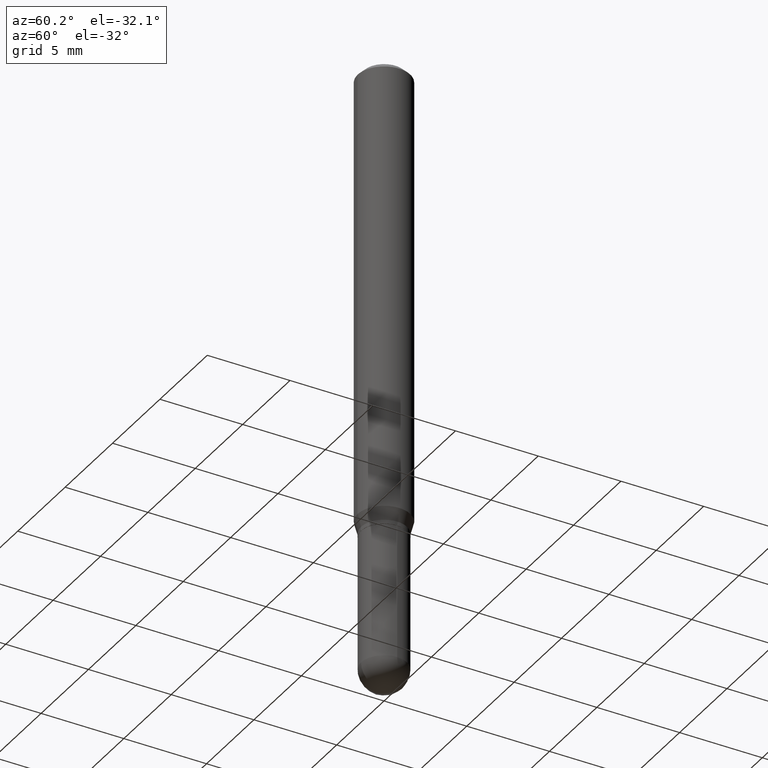
[diagram: clean part render]
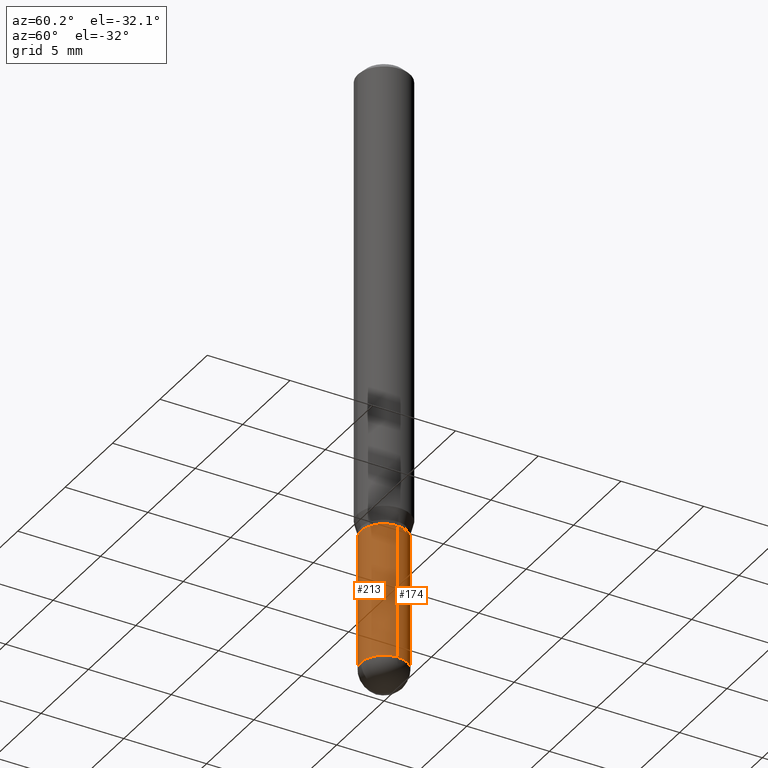
[diagram: same view with one multi-face feature highlighted, each face labeled with its STEP entity id]
A machine part, auxiliary view. The highlighted faces form ONE feature: a constant-radius fillet chain: 2 tangent blend faces with common blend radius 1.3894 mm. The faces share edges in the B-rep.
Their STEP definitions:
[1] entity #213 (Cylinder):
#7 = AXIS2_PLACEMENT_3D ( 'NONE', #219, #334, #107 ) ;
#42 = EDGE_CURVE ( 'NONE', #391, #53, #316, .T. ) ;
#53 = VERTEX_POINT ( 'NONE', #145 ) ;
#55 = CARTESIAN_POINT ( 'NONE',  ( -0.05469999999999999862, 3.886668764607747919E-16, -2.690657494369433708E-30 ) ) ;
#88 = DIRECTION ( 'NONE',  ( -2.445468806185136877E-29, 3.491481338843145188E-15, 1.000000000000000000 ) ) ;
#96 = AXIS2_PLACEMENT_3D ( 'NONE', #377, #339, #386 ) ;
#101 = CARTESIAN_POINT ( 'NONE',  ( 0.05470000000000000556, -4.869045301083706902E-15, -1.445300000000000029 ) ) ;
#102 = ORIENTED_EDGE ( 'NONE', *, *, #148, .T. ) ;
#106 = CARTESIAN_POINT ( 'NONE',  ( 0.05469999999999999862, -3.819680584694387859E-16, 2.667268696360376954E-30 ) ) ;
#107 = DIRECTION ( 'NONE',  ( 1.000000000000000000, -6.982962677686259611E-15, 0.000000000000000000 ) ) ;
#123 = DIRECTION ( 'NONE',  ( -2.445468806185136597E-29, 3.491481338843145583E-15, 1.000000000000000000 ) ) ;
#145 = CARTESIAN_POINT ( 'NONE',  ( 0.05469999999999999862, -4.309884564667978405E-15, -1.125000000000000222 ) ) ;
#148 = EDGE_CURVE ( 'NONE', #317, #278, #372, .T. ) ;
#158 = CYLINDRICAL_SURFACE ( 'NONE', #396, 0.05469999999999999862 ) ;
#161 = EDGE_LOOP ( 'NONE', ( #504, #102, #343, #427, #239 ) ) ;
#165 = DIRECTION ( 'NONE',  ( 1.000000000000000000, -6.982962677686269866E-15, 0.000000000000000000 ) ) ;
#169 = CIRCLE ( 'NONE', #7, 0.05470000000000000556 ) ;
#180 = CARTESIAN_POINT ( 'NONE',  ( -3.819680584694040760E-16, -0.05470000000000515422, -1.445299999999999807 ) ) ;
#207 = EDGE_CURVE ( 'NONE', #346, #53, #212, .T. ) ;
#208 = CARTESIAN_POINT ( 'NONE',  ( -0.05469999999999999862, -4.098410366153493916E-15, -1.125000000000000222 ) ) ;
#212 = CIRCLE ( 'NONE', #498, 0.05469999999999999862 ) ;
#213 = ADVANCED_FACE ( 'NONE', ( #468 ), #158, .T. ) ;
#219 = CARTESIAN_POINT ( 'NONE',  ( 3.534436065579377749E-29, -5.046237979029997798E-15, -1.445300000000000029 ) ) ;
#235 = VECTOR ( 'NONE', #420, 39.37007874015748143 ) ;
#239 = ORIENTED_EDGE ( 'NONE', *, *, #207, .F. ) ;
#248 = EDGE_CURVE ( 'NONE', #278, #391, #169, .T. ) ;
#252 = LINE ( 'NONE', #55, #464 ) ;
#278 = VERTEX_POINT ( 'NONE', #180 ) ;
#284 = DIRECTION ( 'NONE',  ( 1.000000000000000000, -6.982962677686266711E-15, 4.876176775795935793E-29 ) ) ;
#290 = DIRECTION ( 'NONE',  ( -2.445468806185136597E-29, 3.491481338843145583E-15, 1.000000000000000000 ) ) ;
#292 = CARTESIAN_POINT ( 'NONE',  ( -0.05470000000000000556, -4.098410366153493916E-15, -1.445300000000000029 ) ) ;
#316 = LINE ( 'NONE', #106, #235 ) ;
#317 = VERTEX_POINT ( 'NONE', #292 ) ;
#320 = CARTESIAN_POINT ( 'NONE',  ( 0.000000000000000000, 0.000000000000000000, 0.000000000000000000 ) ) ;
#324 = CARTESIAN_POINT ( 'NONE',  ( 2.751152406958279232E-29, -3.927916506198539224E-15, -1.125000000000000222 ) ) ;
#334 = DIRECTION ( 'NONE',  ( -2.445468806185136597E-29, 3.491481338843145583E-15, 1.000000000000000000 ) ) ;
#339 = DIRECTION ( 'NONE',  ( -2.445468806185136597E-29, 3.491481338843145583E-15, 1.000000000000000000 ) ) ;
#343 = ORIENTED_EDGE ( 'NONE', *, *, #248, .T. ) ;
#346 = VERTEX_POINT ( 'NONE', #208 ) ;
#372 = CIRCLE ( 'NONE', #96, 0.05470000000000000556 ) ;
#377 = CARTESIAN_POINT ( 'NONE',  ( 3.534436065579377749E-29, -5.046237979029997798E-15, -1.445300000000000029 ) ) ;
#386 = DIRECTION ( 'NONE',  ( 1.000000000000000000, -6.982962677686259611E-15, 0.000000000000000000 ) ) ;
#391 = VERTEX_POINT ( 'NONE', #101 ) ;
#396 = AXIS2_PLACEMENT_3D ( 'NONE', #320, #123, #284 ) ;
#420 = DIRECTION ( 'NONE',  ( -2.445468806185136877E-29, 3.491481338843145188E-15, 1.000000000000000000 ) ) ;
#427 = ORIENTED_EDGE ( 'NONE', *, *, #42, .T. ) ;
#457 = EDGE_CURVE ( 'NONE', #317, #346, #252, .T. ) ;
#464 = VECTOR ( 'NONE', #88, 39.37007874015748143 ) ;
#468 = FACE_OUTER_BOUND ( 'NONE', #161, .T. ) ;
#498 = AXIS2_PLACEMENT_3D ( 'NONE', #324, #290, #165 ) ;
#504 = ORIENTED_EDGE ( 'NONE', *, *, #457, .F. ) ;
[2] entity #174 (Cylinder):
#12 = DIRECTION ( 'NONE',  ( 1.000000000000000000, -6.982962677686269866E-15, 0.000000000000000000 ) ) ;
#42 = EDGE_CURVE ( 'NONE', #391, #53, #316, .T. ) ;
#45 = AXIS2_PLACEMENT_3D ( 'NONE', #286, #93, #257 ) ;
#46 = DIRECTION ( 'NONE',  ( 1.000000000000000000, -6.982962677686259611E-15, 0.000000000000000000 ) ) ;
#53 = VERTEX_POINT ( 'NONE', #145 ) ;
#55 = CARTESIAN_POINT ( 'NONE',  ( -0.05469999999999999862, 3.886668764607747919E-16, -2.690657494369433708E-30 ) ) ;
#81 = FACE_OUTER_BOUND ( 'NONE', #507, .T. ) ;
#83 = ORIENTED_EDGE ( 'NONE', *, *, #388, .T. ) ;
#88 = DIRECTION ( 'NONE',  ( -2.445468806185136877E-29, 3.491481338843145188E-15, 1.000000000000000000 ) ) ;
#91 = ORIENTED_EDGE ( 'NONE', *, *, #216, .T. ) ;
#93 = DIRECTION ( 'NONE',  ( -2.445468806185136597E-29, 3.491481338843145583E-15, 1.000000000000000000 ) ) ;
#98 = CARTESIAN_POINT ( 'NONE',  ( 3.886668764608108330E-16, 0.05469999999999505119, -1.445300000000000251 ) ) ;
#101 = CARTESIAN_POINT ( 'NONE',  ( 0.05470000000000000556, -4.869045301083706902E-15, -1.445300000000000029 ) ) ;
#106 = CARTESIAN_POINT ( 'NONE',  ( 0.05469999999999999862, -3.819680584694387859E-16, 2.667268696360376954E-30 ) ) ;
#127 = DIRECTION ( 'NONE',  ( 1.000000000000000000, -6.982962677686266711E-15, 4.876176775795935793E-29 ) ) ;
#132 = CIRCLE ( 'NONE', #266, 0.05470000000000000556 ) ;
#139 = CARTESIAN_POINT ( 'NONE',  ( 2.751152406958279232E-29, -3.927916506198539224E-15, -1.125000000000000222 ) ) ;
#145 = CARTESIAN_POINT ( 'NONE',  ( 0.05469999999999999862, -4.309884564667978405E-15, -1.125000000000000222 ) ) ;
#170 = CARTESIAN_POINT ( 'NONE',  ( 3.534436065579377749E-29, -5.046237979029997798E-15, -1.445300000000000029 ) ) ;
#174 = ADVANCED_FACE ( 'NONE', ( #81 ), #355, .T. ) ;
#184 = ORIENTED_EDGE ( 'NONE', *, *, #42, .F. ) ;
#205 = AXIS2_PLACEMENT_3D ( 'NONE', #139, #444, #12 ) ;
#208 = CARTESIAN_POINT ( 'NONE',  ( -0.05469999999999999862, -4.098410366153493916E-15, -1.125000000000000222 ) ) ;
#216 = EDGE_CURVE ( 'NONE', #391, #337, #328, .T. ) ;
#235 = VECTOR ( 'NONE', #420, 39.37007874015748143 ) ;
#252 = LINE ( 'NONE', #55, #464 ) ;
#257 = DIRECTION ( 'NONE',  ( 1.000000000000000000, -6.982962677686259611E-15, 0.000000000000000000 ) ) ;
#266 = AXIS2_PLACEMENT_3D ( 'NONE', #170, #403, #46 ) ;
#286 = CARTESIAN_POINT ( 'NONE',  ( 3.534436065579377749E-29, -5.046237979029997798E-15, -1.445300000000000029 ) ) ;
#292 = CARTESIAN_POINT ( 'NONE',  ( -0.05470000000000000556, -4.098410366153493916E-15, -1.445300000000000029 ) ) ;
#316 = LINE ( 'NONE', #106, #235 ) ;
#317 = VERTEX_POINT ( 'NONE', #292 ) ;
#325 = DIRECTION ( 'NONE',  ( -2.445468806185136597E-29, 3.491481338843145583E-15, 1.000000000000000000 ) ) ;
#328 = CIRCLE ( 'NONE', #45, 0.05470000000000000556 ) ;
#337 = VERTEX_POINT ( 'NONE', #98 ) ;
#346 = VERTEX_POINT ( 'NONE', #208 ) ;
#355 = CYLINDRICAL_SURFACE ( 'NONE', #435, 0.05469999999999999862 ) ;
#365 = ORIENTED_EDGE ( 'NONE', *, *, #366, .F. ) ;
#366 = EDGE_CURVE ( 'NONE', #53, #346, #438, .T. ) ;
#388 = EDGE_CURVE ( 'NONE', #337, #317, #132, .T. ) ;
#391 = VERTEX_POINT ( 'NONE', #101 ) ;
#403 = DIRECTION ( 'NONE',  ( -2.445468806185136597E-29, 3.491481338843145583E-15, 1.000000000000000000 ) ) ;
#420 = DIRECTION ( 'NONE',  ( -2.445468806185136877E-29, 3.491481338843145188E-15, 1.000000000000000000 ) ) ;
#435 = AXIS2_PLACEMENT_3D ( 'NONE', #436, #325, #127 ) ;
#436 = CARTESIAN_POINT ( 'NONE',  ( 0.000000000000000000, 0.000000000000000000, 0.000000000000000000 ) ) ;
#438 = CIRCLE ( 'NONE', #205, 0.05469999999999999862 ) ;
#442 = ORIENTED_EDGE ( 'NONE', *, *, #457, .T. ) ;
#444 = DIRECTION ( 'NONE',  ( -2.445468806185136597E-29, 3.491481338843145583E-15, 1.000000000000000000 ) ) ;
#457 = EDGE_CURVE ( 'NONE', #317, #346, #252, .T. ) ;
#464 = VECTOR ( 'NONE', #88, 39.37007874015748143 ) ;
#507 = EDGE_LOOP ( 'NONE', ( #83, #442, #365, #184, #91 ) ) ;